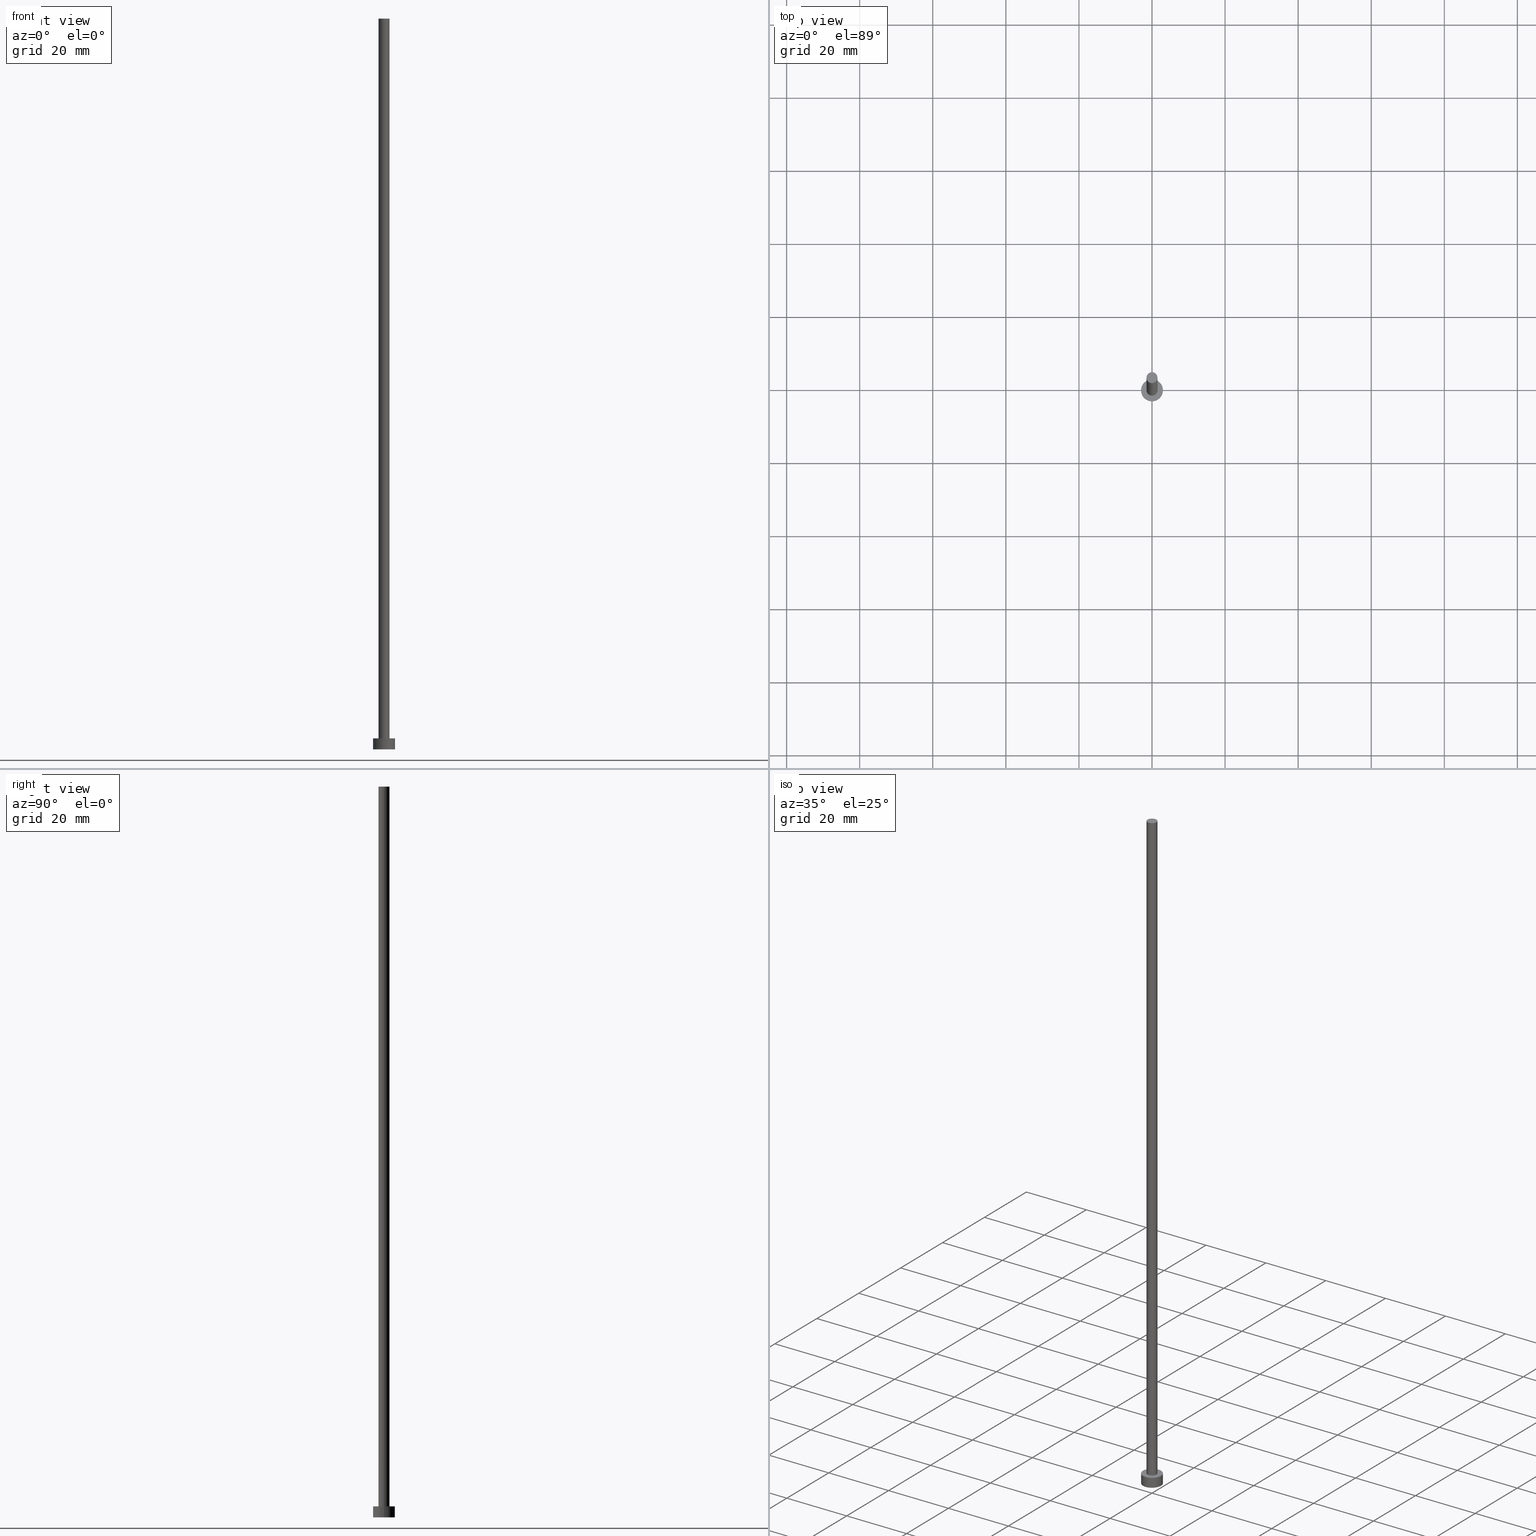
[diagram: canonical four-view strip — front | top / right | iso, engineering-drawing reading convention]
A machine part, canonical four-view strip (front | top / right | iso — engineering-drawing reading convention). The complete STEP part file that produces these views, byte-faithful:
ISO-10303-21;
HEADER;
FILE_DESCRIPTION (( 'STEP AP203' ),
    '1' );
FILE_NAME ('0118.STEP',
    '2023-02-13T16:38:42',
    ( '' ),
    ( '' ),
    'SwSTEP 2.0',
    'SolidWorks 2019',
    '' );
FILE_SCHEMA (( 'CONFIG_CONTROL_DESIGN' ));
ENDSEC;

DATA;
#1 = COORDINATED_UNIVERSAL_TIME_OFFSET ( 1, 0, .AHEAD. ) ;
#2 = FACE_OUTER_BOUND ( 'NONE', #24, .T. ) ;
#3 = PERSON_AND_ORGANIZATION ( #114, #190 ) ;
#4 = VERTEX_POINT ( 'NONE', #238 ) ;
#5 = FACE_BOUND ( 'NONE', #234, .T. ) ;
#6 = PLANE ( 'NONE',  #121 ) ;
#7 = CIRCLE ( 'NONE', #194, 1.500000000000000222 ) ;
#8 = DIRECTION ( 'NONE',  ( -0.000000000000000000, -0.000000000000000000, -1.000000000000000000 ) ) ;
#9 = CYLINDRICAL_SURFACE ( 'NONE', #119, 3.000000000000000444 ) ;
#10 = CARTESIAN_POINT ( 'NONE',  ( 0.000000000000000000, 0.000000000000000000, 200.0000000000000000 ) ) ;
#11 = DIRECTION ( 'NONE',  ( -0.000000000000000000, -0.000000000000000000, -1.000000000000000000 ) ) ;
#12 = CYLINDRICAL_SURFACE ( 'NONE', #25, 1.500000000000000222 ) ;
#13 = CARTESIAN_POINT ( 'NONE',  ( -3.000000000000000444, 0.000000000000000000, 0.000000000000000000 ) ) ;
#14 = EDGE_CURVE ( 'NONE', #4, #83, #61, .T. ) ;
#15 = PERSON_AND_ORGANIZATION ( #114, #190 ) ;
#16 = APPROVAL ( #39, 'NEUR�EN�' ) ;
#17 = SHAPE_DEFINITION_REPRESENTATION ( #251, #213 ) ;
#18 =( GEOMETRIC_REPRESENTATION_CONTEXT ( 3 ) GLOBAL_UNCERTAINTY_ASSIGNED_CONTEXT ( ( #62 ) ) GLOBAL_UNIT_ASSIGNED_CONTEXT ( ( #186, #202, #171 ) ) REPRESENTATION_CONTEXT ( 'NONE', 'WORKASPACE' ) );
#19 = DATE_AND_TIME ( #193, #98 ) ;
#20 = CC_DESIGN_PERSON_AND_ORGANIZATION_ASSIGNMENT ( #129, #109, ( #66 ) ) ;
#21 = PRODUCT ( '0118', '0118', '', ( #53 ) ) ;
#22 = LOCAL_TIME ( 17, 38, 42.00000000000000000, #41 ) ;
#23 = ORIENTED_EDGE ( 'NONE', *, *, #94, .F. ) ;
#24 = EDGE_LOOP ( 'NONE', ( #99, #146 ) ) ;
#25 = AXIS2_PLACEMENT_3D ( 'NONE', #10, #90, #54 ) ;
#26 = DIRECTION ( 'NONE',  ( 1.000000000000000000, 0.000000000000000000, 0.000000000000000000 ) ) ;
#27 = EDGE_CURVE ( 'NONE', #157, #163, #74, .T. ) ;
#28 = ORIENTED_EDGE ( 'NONE', *, *, #27, .F. ) ;
#29 = CALENDAR_DATE ( 2023, 13, 2 ) ;
#30 = EDGE_LOOP ( 'NONE', ( #254, #117, #64, #79 ) ) ;
#31 = AXIS2_PLACEMENT_3D ( 'NONE', #179, #201, #161 ) ;
#32 = APPROVAL_STATUS ( 'not_yet_approved' ) ;
#33 = FACE_OUTER_BOUND ( 'NONE', #253, .T. ) ;
#34 = CARTESIAN_POINT ( 'NONE',  ( 0.000000000000000000, 0.000000000000000000, 0.000000000000000000 ) ) ;
#35 = DIRECTION ( 'NONE',  ( 1.000000000000000000, 0.000000000000000000, 0.000000000000000000 ) ) ;
#36 = EDGE_CURVE ( 'NONE', #155, #49, #52, .T. ) ;
#37 = ADVANCED_FACE ( 'NONE', ( #5, #2 ), #166, .T. ) ;
#38 = CARTESIAN_POINT ( 'NONE',  ( -1.500000000000000222, 0.000000000000000000, 3.000000000000000000 ) ) ;
#39 = APPROVAL_STATUS ( 'not_yet_approved' ) ;
#40 = LOCAL_TIME ( 17, 38, 42.00000000000000000, #172 ) ;
#41 = COORDINATED_UNIVERSAL_TIME_OFFSET ( 1, 0, .AHEAD. ) ;
#42 = APPROVAL_PERSON_ORGANIZATION ( #15, #231, #71 ) ;
#43 = AXIS2_PLACEMENT_3D ( 'NONE', #184, #88, #128 ) ;
#44 = ORIENTED_EDGE ( 'NONE', *, *, #14, .F. ) ;
#45 = ORIENTED_EDGE ( 'NONE', *, *, #14, .T. ) ;
#46 = PRODUCT_DEFINITION ( 'NEZN�M�', '', #66, #175 ) ;
#47 = CC_DESIGN_APPROVAL ( #231, ( #66 ) ) ;
#48 = DIRECTION ( 'NONE',  ( 0.000000000000000000, 0.000000000000000000, 1.000000000000000000 ) ) ;
#49 = VERTEX_POINT ( 'NONE', #236 ) ;
#50 = ORIENTED_EDGE ( 'NONE', *, *, #208, .T. ) ;
#51 = CARTESIAN_POINT ( 'NONE',  ( 0.000000000000000000, 0.000000000000000000, 0.000000000000000000 ) ) ;
#52 = CIRCLE ( 'NONE', #58, 3.000000000000000444 ) ;
#53 = MECHANICAL_CONTEXT ( 'NONE', #137, 'mechanical' ) ;
#54 = DIRECTION ( 'NONE',  ( -1.000000000000000000, 0.000000000000000000, 0.000000000000000000 ) ) ;
#55 = PERSON_AND_ORGANIZATION ( #114, #190 ) ;
#56 = EDGE_CURVE ( 'NONE', #49, #155, #227, .T. ) ;
#57 = ORIENTED_EDGE ( 'NONE', *, *, #76, .T. ) ;
#58 = AXIS2_PLACEMENT_3D ( 'NONE', #65, #124, #183 ) ;
#59 = VECTOR ( 'NONE', #248, 1000.000000000000000 ) ;
#60 = DIRECTION ( 'NONE',  ( -0.000000000000000000, -0.000000000000000000, -1.000000000000000000 ) ) ;
#61 = LINE ( 'NONE', #127, #154 ) ;
#62 = UNCERTAINTY_MEASURE_WITH_UNIT (LENGTH_MEASURE( 1.000000000000000082E-05 ), #186, 'distance_accuracy_value', 'NONE');
#63 = CC_DESIGN_PERSON_AND_ORGANIZATION_ASSIGNMENT ( #210, #187, ( #66 ) ) ;
#64 = ORIENTED_EDGE ( 'NONE', *, *, #143, .T. ) ;
#65 = CARTESIAN_POINT ( 'NONE',  ( 0.000000000000000000, 0.000000000000000000, 3.000000000000000000 ) ) ;
#66 = PRODUCT_DEFINITION_FORMATION_WITH_SPECIFIED_SOURCE ( 'LIBOVOLN�', '', #21, .NOT_KNOWN. ) ;
#67 = PERSON_AND_ORGANIZATION ( #114, #190 ) ;
#68 = DIRECTION ( 'NONE',  ( 1.000000000000000000, 0.000000000000000000, -0.000000000000000000 ) ) ;
#69 = LINE ( 'NONE', #164, #233 ) ;
#70 = DIRECTION ( 'NONE',  ( 0.000000000000000000, 0.000000000000000000, 1.000000000000000000 ) ) ;
#71 = APPROVAL_ROLE ( '' ) ;
#72 = FACE_OUTER_BOUND ( 'NONE', #104, .T. ) ;
#73 = CYLINDRICAL_SURFACE ( 'NONE', #177, 3.000000000000000444 ) ;
#74 = CIRCLE ( 'NONE', #31, 3.000000000000000444 ) ;
#75 = PERSON_AND_ORGANIZATION ( #114, #190 ) ;
#76 = EDGE_CURVE ( 'NONE', #83, #219, #191, .T. ) ;
#77 = ADVANCED_FACE ( 'NONE', ( #81 ), #73, .T. ) ;
#78 = ADVANCED_FACE ( 'NONE', ( #168 ), #149, .F. ) ;
#79 = ORIENTED_EDGE ( 'NONE', *, *, #111, .T. ) ;
#80 = AXIS2_PLACEMENT_3D ( 'NONE', #240, #122, #68 ) ;
#81 = FACE_OUTER_BOUND ( 'NONE', #82, .T. ) ;
#82 = EDGE_LOOP ( 'NONE', ( #174, #195, #232, #218 ) ) ;
#83 = VERTEX_POINT ( 'NONE', #147 ) ;
#84 = DIRECTION ( 'NONE',  ( 1.000000000000000000, 0.000000000000000000, -0.000000000000000000 ) ) ;
#85 = ORIENTED_EDGE ( 'NONE', *, *, #139, .F. ) ;
#86 = CARTESIAN_POINT ( 'NONE',  ( 0.000000000000000000, 0.000000000000000000, 200.0000000000000000 ) ) ;
#87 = CARTESIAN_POINT ( 'NONE',  ( 0.000000000000000000, 0.000000000000000000, 3.000000000000000000 ) ) ;
#88 = DIRECTION ( 'NONE',  ( -0.000000000000000000, -0.000000000000000000, -1.000000000000000000 ) ) ;
#89 = CALENDAR_DATE ( 2023, 13, 2 ) ;
#90 = DIRECTION ( 'NONE',  ( -0.000000000000000000, -0.000000000000000000, -1.000000000000000000 ) ) ;
#91 = PERSON_AND_ORGANIZATION ( #114, #190 ) ;
#92 = EDGE_CURVE ( 'NONE', #4, #160, #7, .T. ) ;
#93 = DATE_AND_TIME ( #113, #22 ) ;
#94 = EDGE_CURVE ( 'NONE', #160, #219, #245, .T. ) ;
#95 = CIRCLE ( 'NONE', #198, 1.500000000000000222 ) ;
#96 = ORIENTED_EDGE ( 'NONE', *, *, #208, .F. ) ;
#97 = APPROVAL_STATUS ( 'not_yet_approved' ) ;
#98 = LOCAL_TIME ( 17, 38, 42.00000000000000000, #241 ) ;
#99 = ORIENTED_EDGE ( 'NONE', *, *, #36, .T. ) ;
#100 = APPLICATION_PROTOCOL_DEFINITION ( 'international standard', 'config_control_design', 1994, #120 ) ;
#101 = ORIENTED_EDGE ( 'NONE', *, *, #92, .T. ) ;
#102 = CARTESIAN_POINT ( 'NONE',  ( 0.000000000000000000, 0.000000000000000000, 3.000000000000000000 ) ) ;
#103 = APPROVAL_DATE_TIME ( #237, #115 ) ;
#104 = EDGE_LOOP ( 'NONE', ( #222, #45, #57, #23 ) ) ;
#105 = DIRECTION ( 'NONE',  ( -0.000000000000000000, -0.000000000000000000, -1.000000000000000000 ) ) ;
#106 = DATE_AND_TIME ( #29, #165 ) ;
#107 = CC_DESIGN_DATE_AND_TIME_ASSIGNMENT ( #93, #250, ( #173 ) ) ;
#108 = DIRECTION ( 'NONE',  ( 0.000000000000000000, 0.000000000000000000, 1.000000000000000000 ) ) ;
#109 = PERSON_AND_ORGANIZATION_ROLE ( 'design_supplier' ) ;
#110 = CARTESIAN_POINT ( 'NONE',  ( 0.000000000000000000, 0.000000000000000000, 3.000000000000000000 ) ) ;
#111 = EDGE_CURVE ( 'NONE', #163, #157, #247, .T. ) ;
#112 = CARTESIAN_POINT ( 'NONE',  ( 3.000000000000000444, 3.673940397442060361E-16, 3.000000000000000000 ) ) ;
#113 = CALENDAR_DATE ( 2023, 13, 2 ) ;
#114 = PERSON ( 'NEUR�EN�', 'NEUR�EN�', 'NEUR�EN�', ('NEUR�EN�'), ('NEUR�EN�'), ('NEUR�EN�') ) ;
#115 = APPROVAL ( #97, 'NEUR�EN�' ) ;
#116 = AXIS2_PLACEMENT_3D ( 'NONE', #176, #199, #26 ) ;
#117 = ORIENTED_EDGE ( 'NONE', *, *, #36, .F. ) ;
#118 = CLOSED_SHELL ( 'NONE', ( #136, #77, #158, #37, #78, #125, #214 ) ) ;
#119 = AXIS2_PLACEMENT_3D ( 'NONE', #102, #105, #167 ) ;
#120 = APPLICATION_CONTEXT ( 'configuration controlled 3d designs of mechanical parts and assemblies' ) ;
#121 = AXIS2_PLACEMENT_3D ( 'NONE', #86, #220, #84 ) ;
#122 = DIRECTION ( 'NONE',  ( 0.000000000000000000, 0.000000000000000000, 1.000000000000000000 ) ) ;
#123 = DIRECTION ( 'NONE',  ( 1.000000000000000000, 0.000000000000000000, 0.000000000000000000 ) ) ;
#124 = DIRECTION ( 'NONE',  ( 0.000000000000000000, 0.000000000000000000, 1.000000000000000000 ) ) ;
#125 = ADVANCED_FACE ( 'NONE', ( #33 ), #12, .T. ) ;
#126 = CARTESIAN_POINT ( 'NONE',  ( -3.000000000000000444, 0.000000000000000000, 3.000000000000000000 ) ) ;
#127 = CARTESIAN_POINT ( 'NONE',  ( 1.500000000000000222, 1.836970198721030181E-16, 200.0000000000000000 ) ) ;
#128 = DIRECTION ( 'NONE',  ( -1.000000000000000000, 0.000000000000000000, 0.000000000000000000 ) ) ;
#129 = PERSON_AND_ORGANIZATION ( #114, #190 ) ;
#130 = DIRECTION ( 'NONE',  ( 1.000000000000000000, 0.000000000000000000, 0.000000000000000000 ) ) ;
#131 = CC_DESIGN_SECURITY_CLASSIFICATION ( #173, ( #66 ) ) ;
#132 = DATE_AND_TIME ( #89, #40 ) ;
#133 = CYLINDRICAL_SURFACE ( 'NONE', #43, 1.500000000000000222 ) ;
#134 = PERSON_AND_ORGANIZATION_ROLE ( 'classification_officer' ) ;
#135 = LOCAL_TIME ( 17, 38, 42.00000000000000000, #1 ) ;
#136 = ADVANCED_FACE ( 'NONE', ( #72 ), #133, .T. ) ;
#137 = APPLICATION_CONTEXT ( 'configuration controlled 3d designs of mechanical parts and assemblies' ) ;
#138 = CARTESIAN_POINT ( 'NONE',  ( 0.000000000000000000, 0.000000000000000000, 3.000000000000000000 ) ) ;
#139 = EDGE_CURVE ( 'NONE', #219, #83, #95, .T. ) ;
#140 = ORIENTED_EDGE ( 'NONE', *, *, #76, .F. ) ;
#141 = DIRECTION ( 'NONE',  ( 0.000000000000000000, 0.000000000000000000, 1.000000000000000000 ) ) ;
#142 = APPROVAL_PERSON_ORGANIZATION ( #3, #115, #178 ) ;
#143 = EDGE_CURVE ( 'NONE', #155, #163, #69, .T. ) ;
#144 = CARTESIAN_POINT ( 'NONE',  ( 0.000000000000000000, 0.000000000000000000, 200.0000000000000000 ) ) ;
#145 = PERSON_AND_ORGANIZATION_ROLE ( 'creator' ) ;
#146 = ORIENTED_EDGE ( 'NONE', *, *, #56, .T. ) ;
#147 = CARTESIAN_POINT ( 'NONE',  ( 1.500000000000000222, 1.836970198721030181E-16, 3.000000000000000000 ) ) ;
#148 = AXIS2_PLACEMENT_3D ( 'NONE', #225, #70, #228 ) ;
#149 = PLANE ( 'NONE',  #148 ) ;
#150 = CIRCLE ( 'NONE', #185, 1.500000000000000222 ) ;
#151 = APPLICATION_PROTOCOL_DEFINITION ( 'international standard', 'config_control_design', 1994, #137 ) ;
#152 = SECURITY_CLASSIFICATION_LEVEL ( 'unclassified' ) ;
#153 = DATE_TIME_ROLE ( 'creation_date' ) ;
#154 = VECTOR ( 'NONE', #60, 1000.000000000000000 ) ;
#155 = VERTEX_POINT ( 'NONE', #126 ) ;
#156 = APPROVAL_ROLE ( '' ) ;
#157 = VERTEX_POINT ( 'NONE', #182 ) ;
#158 = ADVANCED_FACE ( 'NONE', ( #189 ), #9, .T. ) ;
#159 = APPROVAL_PERSON_ORGANIZATION ( #75, #16, #156 ) ;
#160 = VERTEX_POINT ( 'NONE', #226 ) ;
#161 = DIRECTION ( 'NONE',  ( 1.000000000000000000, 0.000000000000000000, 0.000000000000000000 ) ) ;
#162 = CALENDAR_DATE ( 2023, 13, 2 ) ;
#163 = VERTEX_POINT ( 'NONE', #13 ) ;
#164 = CARTESIAN_POINT ( 'NONE',  ( -3.000000000000000444, 0.000000000000000000, 3.000000000000000000 ) ) ;
#165 = LOCAL_TIME ( 17, 38, 42.00000000000000000, #221 ) ;
#166 = PLANE ( 'NONE',  #80 ) ;
#167 = DIRECTION ( 'NONE',  ( -1.000000000000000000, 0.000000000000000000, 0.000000000000000000 ) ) ;
#168 = FACE_OUTER_BOUND ( 'NONE', #200, .T. ) ;
#169 = DIRECTION ( 'NONE',  ( 0.000000000000000000, 0.000000000000000000, 1.000000000000000000 ) ) ;
#170 = CARTESIAN_POINT ( 'NONE',  ( -1.500000000000000222, 0.000000000000000000, 200.0000000000000000 ) ) ;
#171 =( NAMED_UNIT ( * ) SI_UNIT ( $, .STERADIAN. ) SOLID_ANGLE_UNIT ( ) );
#172 = COORDINATED_UNIVERSAL_TIME_OFFSET ( 1, 0, .AHEAD. ) ;
#173 = SECURITY_CLASSIFICATION ( '', '', #152 ) ;
#174 = ORIENTED_EDGE ( 'NONE', *, *, #56, .F. ) ;
#175 = DESIGN_CONTEXT ( 'detailed design', #120, 'design' ) ;
#176 = CARTESIAN_POINT ( 'NONE',  ( 0.000000000000000000, 0.000000000000000000, 3.000000000000000000 ) ) ;
#177 = AXIS2_PLACEMENT_3D ( 'NONE', #87, #8, #243 ) ;
#178 = APPROVAL_ROLE ( '' ) ;
#179 = CARTESIAN_POINT ( 'NONE',  ( 0.000000000000000000, 0.000000000000000000, 0.000000000000000000 ) ) ;
#180 = CC_DESIGN_DATE_AND_TIME_ASSIGNMENT ( #106, #153, ( #46 ) ) ;
#181 = ORIENTED_EDGE ( 'NONE', *, *, #94, .T. ) ;
#182 = CARTESIAN_POINT ( 'NONE',  ( 3.000000000000000444, 3.673940397442060361E-16, 0.000000000000000000 ) ) ;
#183 = DIRECTION ( 'NONE',  ( 1.000000000000000000, 0.000000000000000000, 0.000000000000000000 ) ) ;
#184 = CARTESIAN_POINT ( 'NONE',  ( 0.000000000000000000, 0.000000000000000000, 200.0000000000000000 ) ) ;
#185 = AXIS2_PLACEMENT_3D ( 'NONE', #144, #48, #123 ) ;
#186 =( LENGTH_UNIT ( ) NAMED_UNIT ( * ) SI_UNIT ( .MILLI., .METRE. ) );
#187 = PERSON_AND_ORGANIZATION_ROLE ( 'creator' ) ;
#188 = DIRECTION ( 'NONE',  ( 0.000000000000000000, 0.000000000000000000, 1.000000000000000000 ) ) ;
#189 = FACE_OUTER_BOUND ( 'NONE', #30, .T. ) ;
#190 = ORGANIZATION ( 'NEUR�EN�', 'NEUR�EN�', '' ) ;
#191 = CIRCLE ( 'NONE', #116, 1.500000000000000222 ) ;
#192 = AXIS2_PLACEMENT_3D ( 'NONE', #34, #169, #246 ) ;
#193 = CALENDAR_DATE ( 2023, 13, 2 ) ;
#194 = AXIS2_PLACEMENT_3D ( 'NONE', #206, #188, #35 ) ;
#195 = ORIENTED_EDGE ( 'NONE', *, *, #223, .T. ) ;
#196 = PERSON_AND_ORGANIZATION_ROLE ( 'design_owner' ) ;
#197 = EDGE_LOOP ( 'NONE', ( #50, #101 ) ) ;
#198 = AXIS2_PLACEMENT_3D ( 'NONE', #110, #207, #242 ) ;
#199 = DIRECTION ( 'NONE',  ( 0.000000000000000000, 0.000000000000000000, 1.000000000000000000 ) ) ;
#200 = EDGE_LOOP ( 'NONE', ( #211, #28 ) ) ;
#201 = DIRECTION ( 'NONE',  ( 0.000000000000000000, 0.000000000000000000, 1.000000000000000000 ) ) ;
#202 =( NAMED_UNIT ( * ) PLANE_ANGLE_UNIT ( ) SI_UNIT ( $, .RADIAN. ) );
#203 = AXIS2_PLACEMENT_3D ( 'NONE', #138, #141, #216 ) ;
#204 = APPROVAL_DATE_TIME ( #132, #231 ) ;
#205 = CC_DESIGN_APPROVAL ( #16, ( #173 ) ) ;
#206 = CARTESIAN_POINT ( 'NONE',  ( 0.000000000000000000, 0.000000000000000000, 200.0000000000000000 ) ) ;
#207 = DIRECTION ( 'NONE',  ( 0.000000000000000000, 0.000000000000000000, 1.000000000000000000 ) ) ;
#208 = EDGE_CURVE ( 'NONE', #160, #4, #150, .T. ) ;
#209 = CC_DESIGN_APPROVAL ( #115, ( #46 ) ) ;
#210 = PERSON_AND_ORGANIZATION ( #114, #190 ) ;
#211 = ORIENTED_EDGE ( 'NONE', *, *, #111, .F. ) ;
#212 = MANIFOLD_SOLID_BREP ( 'P�idat vysunut�m3', #118 ) ;
#213 = ADVANCED_BREP_SHAPE_REPRESENTATION ( '0118', ( #212, #192 ), #18 ) ;
#214 = ADVANCED_FACE ( 'NONE', ( #239 ), #6, .T. ) ;
#215 = VECTOR ( 'NONE', #11, 1000.000000000000000 ) ;
#216 = DIRECTION ( 'NONE',  ( 1.000000000000000000, 0.000000000000000000, 0.000000000000000000 ) ) ;
#217 = ORIENTED_EDGE ( 'NONE', *, *, #139, .T. ) ;
#218 = ORIENTED_EDGE ( 'NONE', *, *, #143, .F. ) ;
#219 = VERTEX_POINT ( 'NONE', #38 ) ;
#220 = DIRECTION ( 'NONE',  ( 0.000000000000000000, 0.000000000000000000, 1.000000000000000000 ) ) ;
#221 = COORDINATED_UNIVERSAL_TIME_OFFSET ( 1, 0, .AHEAD. ) ;
#222 = ORIENTED_EDGE ( 'NONE', *, *, #92, .F. ) ;
#223 = EDGE_CURVE ( 'NONE', #49, #157, #244, .T. ) ;
#224 = DIRECTION ( 'NONE',  ( -0.000000000000000000, -0.000000000000000000, -1.000000000000000000 ) ) ;
#225 = CARTESIAN_POINT ( 'NONE',  ( 0.000000000000000000, 0.000000000000000000, 0.000000000000000000 ) ) ;
#226 = CARTESIAN_POINT ( 'NONE',  ( -1.500000000000000222, 0.000000000000000000, 200.0000000000000000 ) ) ;
#227 = CIRCLE ( 'NONE', #203, 3.000000000000000444 ) ;
#228 = DIRECTION ( 'NONE',  ( 1.000000000000000000, 0.000000000000000000, -0.000000000000000000 ) ) ;
#229 = CC_DESIGN_PERSON_AND_ORGANIZATION_ASSIGNMENT ( #55, #196, ( #21 ) ) ;
#230 = AXIS2_PLACEMENT_3D ( 'NONE', #51, #108, #130 ) ;
#231 = APPROVAL ( #32, 'NEUR�EN�' ) ;
#232 = ORIENTED_EDGE ( 'NONE', *, *, #27, .T. ) ;
#233 = VECTOR ( 'NONE', #224, 1000.000000000000000 ) ;
#234 = EDGE_LOOP ( 'NONE', ( #85, #140 ) ) ;
#235 = CC_DESIGN_PERSON_AND_ORGANIZATION_ASSIGNMENT ( #67, #145, ( #46 ) ) ;
#236 = CARTESIAN_POINT ( 'NONE',  ( 3.000000000000000444, 3.673940397442060361E-16, 3.000000000000000000 ) ) ;
#237 = DATE_AND_TIME ( #162, #135 ) ;
#238 = CARTESIAN_POINT ( 'NONE',  ( 1.500000000000000222, 1.836970198721030181E-16, 200.0000000000000000 ) ) ;
#239 = FACE_OUTER_BOUND ( 'NONE', #197, .T. ) ;
#240 = CARTESIAN_POINT ( 'NONE',  ( 0.000000000000000000, 0.000000000000000000, 3.000000000000000000 ) ) ;
#241 = COORDINATED_UNIVERSAL_TIME_OFFSET ( 1, 0, .AHEAD. ) ;
#242 = DIRECTION ( 'NONE',  ( 1.000000000000000000, 0.000000000000000000, 0.000000000000000000 ) ) ;
#243 = DIRECTION ( 'NONE',  ( -1.000000000000000000, 0.000000000000000000, 0.000000000000000000 ) ) ;
#244 = LINE ( 'NONE', #112, #215 ) ;
#245 = LINE ( 'NONE', #170, #59 ) ;
#246 = DIRECTION ( 'NONE',  ( 1.000000000000000000, 0.000000000000000000, 0.000000000000000000 ) ) ;
#247 = CIRCLE ( 'NONE', #230, 3.000000000000000444 ) ;
#248 = DIRECTION ( 'NONE',  ( -0.000000000000000000, -0.000000000000000000, -1.000000000000000000 ) ) ;
#249 = APPROVAL_DATE_TIME ( #19, #16 ) ;
#250 = DATE_TIME_ROLE ( 'classification_date' ) ;
#251 = PRODUCT_DEFINITION_SHAPE ( 'NONE', 'NONE',  #46 ) ;
#252 = PRODUCT_RELATED_PRODUCT_CATEGORY ( 'detail', '', ( #21 ) ) ;
#253 = EDGE_LOOP ( 'NONE', ( #44, #96, #181, #217 ) ) ;
#254 = ORIENTED_EDGE ( 'NONE', *, *, #223, .F. ) ;
#255 = CC_DESIGN_PERSON_AND_ORGANIZATION_ASSIGNMENT ( #91, #134, ( #173 ) ) ;
ENDSEC;
END-ISO-10303-21;
